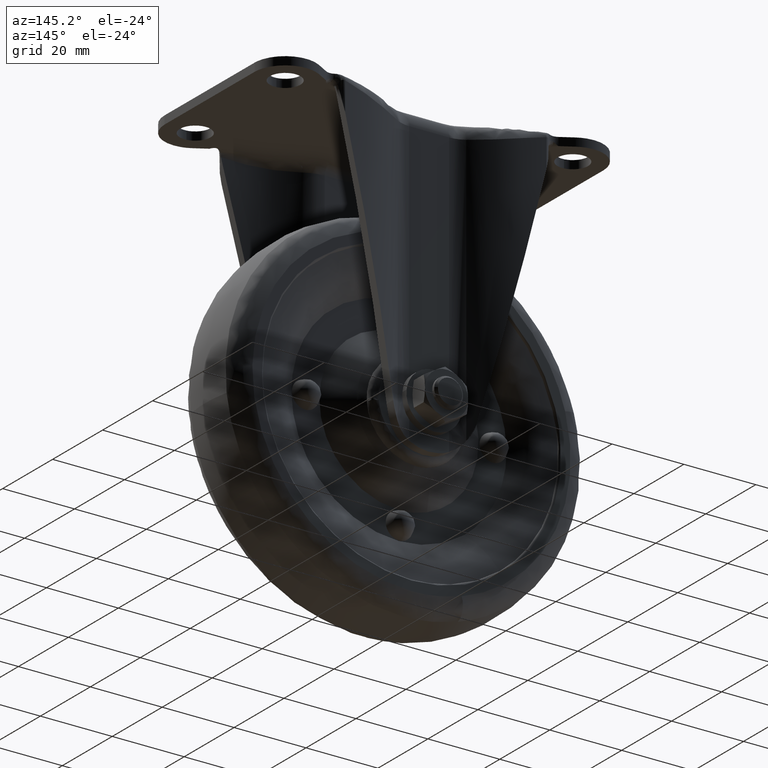
[diagram: clean part render]
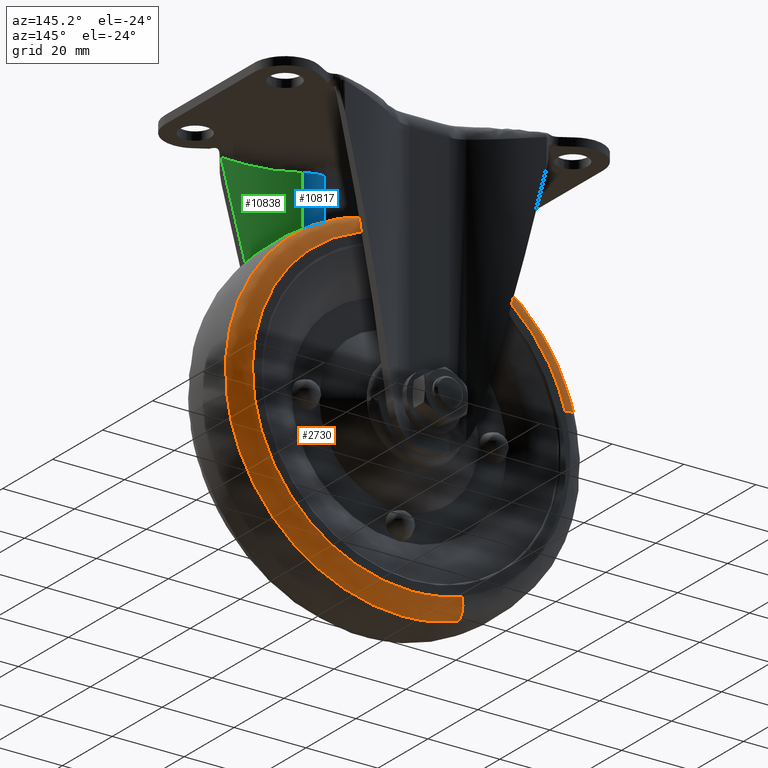
[diagram: same view with three faces highlighted in distinct colors, each labeled with its STEP entity id]
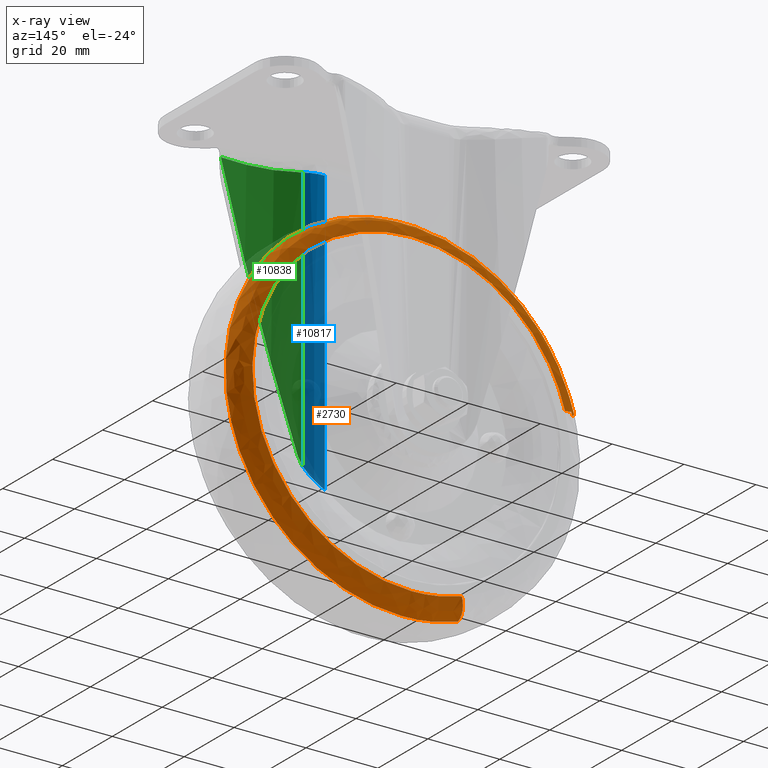
[diagram: x-ray of the same camera — body ghosted, the three highlighted faces saturated]
A machine part, auxiliary view with three faces highlighted in distinct colors.
The next image is the same camera in x-ray (body ghosted, the three faces saturated) — at least one of them is partly hidden behind the body in this view.
Their STEP definitions:

[orange] entity #2730 — the highlighted face is a freeform B-spline surface patch.
#2554=CARTESIAN_POINT('',(-13.876358544960109,10.990695812734886,-114.717122750625550));
#2555=CARTESIAN_POINT('',(-12.682433566839885,10.990695812734884,-115.114257787267730));
#2556=CARTESIAN_POINT('',(-11.467749781395989,10.990695812734888,-115.442459542424440));
#2557=CARTESIAN_POINT('',(30.974709761028421,10.990695812734884,-126.910209323820410));
#2558=CARTESIAN_POINT('',(42.442459542424402,10.990695812734888,-84.467749781395995));
#2559=CARTESIAN_POINT('',(53.910209323820411,10.990695812734884,-42.025290238971579));
#2560=CARTESIAN_POINT('',(11.467749781395989,10.990695812734888,-30.557540457575591));
#2561=CARTESIAN_POINT('',(-30.974709761028407,10.990695812734884,-19.089790676179597));
#2562=CARTESIAN_POINT('',(-42.442459542424402,10.990695812734888,-61.532250218604005));
#2563=CARTESIAN_POINT('',(-15.272281850302059,11.260882249273296,-118.913749963069450));
#2564=CARTESIAN_POINT('',(-13.958251320254217,11.260882249273294,-119.350835686429750));
#2565=CARTESIAN_POINT('',(-12.621373704258295,11.260882249273298,-119.712053630768390));
#2566=CARTESIAN_POINT('',(34.090679926510077,11.260882249273296,-132.333427335026670));
#2567=CARTESIAN_POINT('',(46.712053630768402,11.260882249273298,-85.621373704258318));
#2568=CARTESIAN_POINT('',(59.333427335026691,11.260882249273296,-38.909320073489909));
#2569=CARTESIAN_POINT('',(12.621373704258302,11.260882249273298,-26.287946369231609));
#2570=CARTESIAN_POINT('',(-34.090679926510077,11.260882249273296,-13.666572664973311));
#2571=CARTESIAN_POINT('',(-46.712053630768402,11.260882249273298,-60.378626295741718));
#2572=CARTESIAN_POINT('',(-15.524787428464316,6.902756280953331,-119.672868874942670));
#2573=CARTESIAN_POINT('',(-14.189031262263027,6.902756280953332,-120.117181192492750));
#2574=CARTESIAN_POINT('',(-12.830050265864093,6.902756280953333,-120.484371364607910));
#2575=CARTESIAN_POINT('',(34.654321098743814,6.902756280953332,-133.314421630472000));
#2576=CARTESIAN_POINT('',(47.484371364607910,6.902756280953333,-85.830050265864102));
#2577=CARTESIAN_POINT('',(60.314421630471998,6.902756280953332,-38.345678901256186));
#2578=CARTESIAN_POINT('',(12.830050265864104,6.902756280953333,-25.515628635392101));
#2579=CARTESIAN_POINT('',(-34.654321098743800,6.902756280953332,-12.685578369527997));
#2580=CARTESIAN_POINT('',(-47.484371364607910,6.902756280953333,-60.169949734135905));
#2588=(BOUNDED_SURFACE()B_SPLINE_SURFACE(2,2,((#2554,#2563,#2572),(#2555,#2564,#2573),(#2556,#2565,#2574),(#2557,#2566,#2575),(#2558,#2567,#2576),(#2559,#2568,#2577),(#2560,#2569,#2578),(#2561,#2570,#2579),(#2562,#2571,#2580)),.UNSPECIFIED.,.F.,.F.,.U.)B_SPLINE_SURFACE_WITH_KNOTS((3,2,2,2,3),(3,3),(0.0,3.259834423409346,84.755772729226237,166.251711035043090,247.747649340859990),(0.0,7.586701258167580),.UNSPECIFIED.)GEOMETRIC_REPRESENTATION_ITEM()RATIONAL_B_SPLINE_SURFACE(((0.894125716216306,0.670287635530049,0.897103704388296),(0.903984787140220,0.677678557430918,0.906995612077852),(0.914701167690566,0.685712167526518,0.917747684761806),(0.646791398433252,0.484871723600127,0.648945611313327),(0.914701167690566,0.685712167526518,0.917747684761806),(0.646791398433252,0.484871723600127,0.648945611313327),(0.914701167690566,0.685712167526518,0.917747684761806),(0.646791398433252,0.484871723600127,0.648945611313327),(0.914701167690566,0.685712167526518,0.917747684761806)))REPRESENTATION_ITEM('')SURFACE());
#2589=CARTESIAN_POINT('',(-13.972591000158550,11.0,-115.006422980699100));
#2590=VERTEX_POINT('',#2589);
#2591=CARTESIAN_POINT('',(0.0,11.0,-117.269322000000000));
#2592=VERTEX_POINT('',#2591);
#2593=CARTESIAN_POINT('',(-13.972591000158550,11.0,-115.006422980699160));
#2594=CARTESIAN_POINT('',(-7.169536817871508,11.000000000000002,-117.269321999999930));
#2595=CARTESIAN_POINT('',(0.0,11.0,-117.269322000000000));
#2603=(BOUNDED_CURVE()B_SPLINE_CURVE(2,(#2593,#2594,#2595),.UNSPECIFIED.,.F.,.U.)B_SPLINE_CURVE_WITH_KNOTS((3,3),(0.946340696665817,1.0),.UNSPECIFIED.)CURVE()GEOMETRIC_REPRESENTATION_ITEM()RATIONAL_B_SPLINE_CURVE((0.901255104926355,0.937134215708655,1.0))REPRESENTATION_ITEM(''));
#2604=EDGE_CURVE('',#2590,#2592,#2603,.T.);
#2605=ORIENTED_EDGE('',*,*,#2604,.T.);
#2606=CARTESIAN_POINT('',(0.0,11.0,-28.730677999999990));
#2607=VERTEX_POINT('',#2606);
#2608=CARTESIAN_POINT('',(0.0,11.0,-117.269322000000000));
#2609=CARTESIAN_POINT('',(44.269322000000003,11.0,-117.269321999999990));
#2610=CARTESIAN_POINT('',(44.269322000000003,11.0,-73.0));
#2611=CARTESIAN_POINT('',(44.269322000000003,11.0,-28.730677999999990));
#2612=CARTESIAN_POINT('',(0.0,11.0,-28.730677999999990));
#2620=(BOUNDED_CURVE()B_SPLINE_CURVE(2,(#2608,#2609,#2610,#2611,#2612),.UNSPECIFIED.,.F.,.U.)B_SPLINE_CURVE_WITH_KNOTS((3,2,3),(0.0,0.250000000000000,0.500000000000000),.UNSPECIFIED.)CURVE()GEOMETRIC_REPRESENTATION_ITEM()RATIONAL_B_SPLINE_CURVE((1.0,0.707106781186548,1.0,0.707106781186548,1.0))REPRESENTATION_ITEM(''));
#2621=EDGE_CURVE('',#2592,#2607,#2620,.T.);
#2622=ORIENTED_EDGE('',*,*,#2621,.T.);
#2623=CARTESIAN_POINT('',(-42.736790628027897,11.0,-61.452723365242562));
#2624=VERTEX_POINT('',#2623);
#2625=CARTESIAN_POINT('',(0.0,11.0,-28.730677999999990));
#2626=CARTESIAN_POINT('',(-33.895450307254251,11.0,-28.730677999999994));
#2627=CARTESIAN_POINT('',(-42.736790628027904,10.999999999999998,-61.452723365242569));
#2635=(BOUNDED_CURVE()B_SPLINE_CURVE(2,(#2625,#2626,#2627),.UNSPECIFIED.,.F.,.U.)B_SPLINE_CURVE_WITH_KNOTS((3,3),(0.500000000000000,0.705522207668585),.UNSPECIFIED.)CURVE()GEOMETRIC_REPRESENTATION_ITEM()RATIONAL_B_SPLINE_CURVE((1.0,0.759215756233206,0.914323587272509))REPRESENTATION_ITEM(''));
#2636=EDGE_CURVE('',#2607,#2624,#2635,.T.);
#2637=ORIENTED_EDGE('',*,*,#2636,.T.);
#2638=CARTESIAN_POINT('',(-47.422630842771611,7.200007851536473,-60.186670888908743));
#2639=VERTEX_POINT('',#2638);
#2640=CARTESIAN_POINT('',(-42.736790628027904,10.999999999999998,-61.452723365242569));
#2641=CARTESIAN_POINT('',(-46.515686129134053,11.000000066225230,-60.431703436674034));
#2642=CARTESIAN_POINT('',(-47.422630842771611,7.200007851536473,-60.186670888908743));
#2650=(BOUNDED_CURVE()B_SPLINE_CURVE(2,(#2640,#2641,#2642),.UNSPECIFIED.,.F.,.U.)B_SPLINE_CURVE_WITH_KNOTS((3,3),(-1.686821144882297,-0.303122849640564),.UNSPECIFIED.)CURVE()GEOMETRIC_REPRESENTATION_ITEM()RATIONAL_B_SPLINE_CURVE((0.894853526910430,0.705698318442292,0.897623019123299))REPRESENTATION_ITEM(''));
#2651=EDGE_CURVE('',#2624,#2639,#2650,.T.);
#2652=ORIENTED_EDGE('',*,*,#2651,.T.);
#2653=CARTESIAN_POINT('',(0.0,7.199999815677270,-23.876813315602799));
#2654=VERTEX_POINT('',#2653);
#2655=CARTESIAN_POINT('',(0.0,7.199999815677270,-23.876813315602799));
#2656=CARTESIAN_POINT('',(-37.611912203591608,7.200002073881898,-23.876813545746927));
#2657=CARTESIAN_POINT('',(-47.422630842771618,7.200007851536473,-60.186670888908743));
#2665=(BOUNDED_CURVE()B_SPLINE_CURVE(2,(#2655,#2656,#2657),.UNSPECIFIED.,.F.,.U.)B_SPLINE_CURVE_WITH_KNOTS((3,3),(0.500000000000000,0.705522334825581),.UNSPECIFIED.)CURVE()GEOMETRIC_REPRESENTATION_ITEM()RATIONAL_B_SPLINE_CURVE((1.0,0.759215607259517,0.914323779203705))REPRESENTATION_ITEM(''));
#2666=EDGE_CURVE('',#2654,#2639,#2665,.T.);
#2667=ORIENTED_EDGE('',*,*,#2666,.F.);
#2668=CARTESIAN_POINT('',(48.794628694626439,7.200038013335037,-78.671926726670165));
#2669=VERTEX_POINT('',#2668);
#2670=CARTESIAN_POINT('',(48.794628694626439,7.200038013335037,-78.671926726670165));
#2671=CARTESIAN_POINT('',(49.123177545972659,7.200037028176925,-75.845478498813549));
#2672=CARTESIAN_POINT('',(49.123177817652973,7.200035921869884,-72.999998969322533));
#2673=CARTESIAN_POINT('',(49.123182507829867,7.200016823041001,-23.876812830115259));
#2674=CARTESIAN_POINT('',(0.0,7.199999815677270,-23.876813315602799));
#2682=(BOUNDED_CURVE()B_SPLINE_CURVE(2,(#2670,#2671,#2672,#2673,#2674),.UNSPECIFIED.,.F.,.U.)B_SPLINE_CURVE_WITH_KNOTS((3,2,3),(0.230000149328988,0.250000000000000,0.500000000000000),.UNSPECIFIED.)CURVE()GEOMETRIC_REPRESENTATION_ITEM()RATIONAL_B_SPLINE_CURVE((0.956886412106520,0.976568717444716,1.0,0.707106781186547,1.0))REPRESENTATION_ITEM(''));
#2683=EDGE_CURVE('',#2669,#2654,#2682,.T.);
#2684=ORIENTED_EDGE('',*,*,#2683,.F.);
#2685=CARTESIAN_POINT('',(0.0,7.200009338523695,-122.123184330101590));
#2686=VERTEX_POINT('',#2685);
#2687=CARTESIAN_POINT('',(0.0,7.200009338523695,-122.123184330101590));
#2688=CARTESIAN_POINT('',(43.743824247192030,7.200023675929366,-122.123184962059500));
#2689=CARTESIAN_POINT('',(48.794628694626439,7.200038013335037,-78.671926726670165));
#2697=(BOUNDED_CURVE()B_SPLINE_CURVE(2,(#2687,#2688,#2689),.UNSPECIFIED.,.F.,.U.)B_SPLINE_CURVE_WITH_KNOTS((3,3),(0.0,0.230000149328989),.UNSPECIFIED.)CURVE()GEOMETRIC_REPRESENTATION_ITEM()RATIONAL_B_SPLINE_CURVE((1.0,0.730538063741831,0.956886412106520))REPRESENTATION_ITEM(''));
#2698=EDGE_CURVE('',#2686,#2669,#2697,.T.);
#2699=ORIENTED_EDGE('',*,*,#2698,.F.);
#2700=CARTESIAN_POINT('',(-15.504600760698301,7.200009058311881,-119.612172195363400));
#2701=VERTEX_POINT('',#2700);
#2702=CARTESIAN_POINT('',(-15.504600760698299,7.200009058311882,-119.612172195363430));
#2703=CARTESIAN_POINT('',(-7.955633002077046,7.200009338523694,-122.123184330101620));
#2704=CARTESIAN_POINT('',(0.0,7.200009338523695,-122.123184330101590));
#2712=(BOUNDED_CURVE()B_SPLINE_CURVE(2,(#2702,#2703,#2704),.UNSPECIFIED.,.F.,.U.)B_SPLINE_CURVE_WITH_KNOTS((3,3),(0.946340699016298,1.0),.UNSPECIFIED.)CURVE()GEOMETRIC_REPRESENTATION_ITEM()RATIONAL_B_SPLINE_CURVE((0.901255108069637,0.937134218462415,1.0))REPRESENTATION_ITEM(''));
#2713=EDGE_CURVE('',#2701,#2686,#2712,.T.);
#2714=ORIENTED_EDGE('',*,*,#2713,.F.);
#2715=CARTESIAN_POINT('',(-13.972591000158554,11.0,-115.006422980699130));
#2716=CARTESIAN_POINT('',(-15.208080907182064,10.999999990248162,-118.720731345990870));
#2717=CARTESIAN_POINT('',(-15.504600760698295,7.200009058311881,-119.612172195363480));
#2725=(BOUNDED_CURVE()B_SPLINE_CURVE(2,(#2715,#2716,#2717),.UNSPECIFIED.,.F.,.U.)B_SPLINE_CURVE_WITH_KNOTS((3,3),(-1.686821144742521,-0.303123155543126),.UNSPECIFIED.)CURVE()GEOMETRIC_REPRESENTATION_ITEM()RATIONAL_B_SPLINE_CURVE((0.874724513379568,0.689824240784691,0.877431625169222))REPRESENTATION_ITEM(''));
#2726=EDGE_CURVE('',#2590,#2701,#2725,.T.);
#2727=ORIENTED_EDGE('',*,*,#2726,.F.);
#2728=EDGE_LOOP('',(#2605,#2622,#2637,#2652,#2667,#2684,#2699,#2714,#2727));
#2729=FACE_OUTER_BOUND('',#2728,.T.);
#2730=ADVANCED_FACE('',(#2729),#2588,.T.);

[blue] entity #10817 — the highlighted face is a freeform B-spline surface patch.
#7611=CARTESIAN_POINT('',(10.752015536604739,-17.263225094700800,-4.999999999999890));
#7612=VERTEX_POINT('',#7611);
#7685=CARTESIAN_POINT('',(5.520442000000000,-15.750000000000000,-4.999999999999890));
#7686=VERTEX_POINT('',#7685);
#7716=CARTESIAN_POINT('',(5.520442000000000,-15.750000000000000,-4.999999999999890));
#7717=CARTESIAN_POINT('',(8.355077855599950,-15.749999999999995,-4.999999999999890));
#7718=CARTESIAN_POINT('',(10.752015536604750,-17.263225094700779,-4.999999999999890));
#7726=(BOUNDED_CURVE()B_SPLINE_CURVE(2,(#7716,#7717,#7718),.UNSPECIFIED.,.F.,.U.)CURVE()GEOMETRIC_REPRESENTATION_ITEM()QUASI_UNIFORM_CURVE()RATIONAL_B_SPLINE_CURVE((1.0,0.960622005799092,1.0))REPRESENTATION_ITEM(''));
#7727=EDGE_CURVE('',#7686,#7612,#7726,.T.);
#10017=CARTESIAN_POINT('',(5.520442000000000,-15.750000000000000,-83.654797223085112));
#10018=VERTEX_POINT('',#10017);
#10032=CARTESIAN_POINT('',(10.752015536604739,-17.263225094700800,-78.328615746871208));
#10033=VERTEX_POINT('',#10032);
#10034=CARTESIAN_POINT('',(10.752015536604739,-17.263225094700800,-78.328615746871208));
#10035=CARTESIAN_POINT('',(10.472852642506220,-17.086985094717949,-78.891907185564207));
#10036=CARTESIAN_POINT('',(10.154164372996410,-16.905502787067949,-79.424803492118144));
#10037=CARTESIAN_POINT('',(9.437199884366240,-16.557907764616051,-80.438038186537554));
#10038=CARTESIAN_POINT('',(9.038968214840187,-16.391534251921609,-80.918321893601586));
#10039=CARTESIAN_POINT('',(8.485434482273099,-16.208564634970880,-81.486610552603139));
#10040=CARTESIAN_POINT('',(8.371649387907898,-16.173160024764080,-81.598888093445879));
#10041=CARTESIAN_POINT('',(8.140298569372371,-16.105908564294850,-81.818215756570339));
#10042=CARTESIAN_POINT('',(8.022589892608137,-16.074004209368109,-81.925433135153426));
#10043=CARTESIAN_POINT('',(7.663345431775317,-15.983970202622610,-82.239827316132462));
#10044=CARTESIAN_POINT('',(7.415703217831039,-15.931507603216650,-82.439760219212303));
#10045=CARTESIAN_POINT('',(6.903746679171762,-15.844646877347790,-82.820387422567109));
#10046=CARTESIAN_POINT('',(6.639434471231654,-15.810237816607991,-83.001082368338857));
#10047=CARTESIAN_POINT('',(6.093350764881194,-15.762922444016880,-83.342863012425326));
#10048=CARTESIAN_POINT('',(5.811583698321506,-15.750000000000000,-83.503951468326463));
#10049=CARTESIAN_POINT('',(5.520441999999998,-15.750000000000000,-83.654797223085112));
#10050=B_SPLINE_CURVE_WITH_KNOTS('',3,(#10034,#10035,#10036,#10037,#10038,#10039,#10040,#10041,#10042,#10043,#10044,#10045,#10046,#10047,#10048,#10049),.UNSPECIFIED.,.F.,.U.,(4,2,2,2,2,2,2,4),(0.0,0.249999999999995,0.499999999999990,0.562499999999989,0.624999999999989,0.749999999999993,0.874999999999996,1.0),.UNSPECIFIED.);
#10051=EDGE_CURVE('',#10033,#10018,#10050,.T.);
#10778=CARTESIAN_POINT('',(5.520442000000000,-15.750000000000000,-83.654797223085112));
#10779=CARTESIAN_POINT('',(5.520442000000000,-15.750000000000000,-4.999999999999890));
#10780=QUASI_UNIFORM_CURVE('',1,(#10778,#10779),.UNSPECIFIED.,.F.,.U.);
#10781=EDGE_CURVE('',#10018,#7686,#10780,.T.);
#10793=CARTESIAN_POINT('',(5.249794294083275,-15.753737966995679,-85.621167153662228));
#10794=CARTESIAN_POINT('',(5.249794294083275,-15.753737966995679,-2.984470821158325));
#10795=CARTESIAN_POINT('',(8.379880735513650,-15.667261032034157,-85.621167153662242));
#10796=CARTESIAN_POINT('',(8.379880735513650,-15.667261032034157,-2.984470821158326));
#10797=CARTESIAN_POINT('',(10.980200297875951,-17.411754530073775,-85.621167153662256));
#10798=CARTESIAN_POINT('',(10.980200297875951,-17.411754530073775,-2.984470821158325));
#10806=(BOUNDED_SURFACE()B_SPLINE_SURFACE(1,2,((#10793,#10795,#10797),(#10794,#10796,#10798)),.UNSPECIFIED.,.F.,.F.,.U.)B_SPLINE_SURFACE_WITH_KNOTS((2,2),(3,3),(0.0,82.636696332503931),(0.0,6.110380548654788),.UNSPECIFIED.)GEOMETRIC_REPRESENTATION_ITEM()RATIONAL_B_SPLINE_SURFACE(((0.998078107988550,0.947813846557944,0.991972044837159),(0.998078107988550,0.947813846557944,0.991972044837159)))REPRESENTATION_ITEM('')SURFACE());
#10807=ORIENTED_EDGE('',*,*,#10781,.T.);
#10808=ORIENTED_EDGE('',*,*,#7727,.T.);
#10809=CARTESIAN_POINT('',(10.752015536604739,-17.263225094700800,-78.328615746871208));
#10810=CARTESIAN_POINT('',(10.752015536604739,-17.263225094700800,-4.999999999999890));
#10811=QUASI_UNIFORM_CURVE('',1,(#10809,#10810),.UNSPECIFIED.,.F.,.U.);
#10812=EDGE_CURVE('',#10033,#7612,#10811,.T.);
#10813=ORIENTED_EDGE('',*,*,#10812,.F.);
#10814=ORIENTED_EDGE('',*,*,#10051,.T.);
#10815=EDGE_LOOP('',(#10807,#10808,#10813,#10814));
#10816=FACE_OUTER_BOUND('',#10815,.T.);
#10817=ADVANCED_FACE('',(#10816),#10806,.T.);

[green] entity #10838 — the highlighted face is a freeform B-spline surface patch.
#7601=CARTESIAN_POINT('',(29.421013821326049,-22.954649893946200,-3.834143536252110));
#7602=VERTEX_POINT('',#7601);
#7611=CARTESIAN_POINT('',(10.752015536604739,-17.263225094700800,-4.999999999999890));
#7612=VERTEX_POINT('',#7611);
#7613=CARTESIAN_POINT('',(10.752015536604739,-17.263225094700800,-4.999999999999890));
#7614=CARTESIAN_POINT('',(11.007375366808651,-17.415258690373161,-4.999285578895084));
#7615=CARTESIAN_POINT('',(11.524125786046220,-17.722916414922668,-4.997839864410058));
#7616=CARTESIAN_POINT('',(12.321385960701010,-18.167153440086409,-4.986477492832036));
#7617=CARTESIAN_POINT('',(13.146545333427570,-18.603901034902560,-4.968441101658184));
#7618=CARTESIAN_POINT('',(14.000825892486329,-19.029983376799869,-4.943024537592962));
#7619=CARTESIAN_POINT('',(14.884137843331869,-19.444256497713209,-4.910423046130638));
#7620=CARTESIAN_POINT('',(15.796682109340640,-19.844949454266960,-4.870583521572487));
#7621=CARTESIAN_POINT('',(16.738499745827500,-20.230402472802400,-4.823515949458993));
#7622=CARTESIAN_POINT('',(17.709592741981279,-20.598865089458009,-4.769234850021149));
#7623=CARTESIAN_POINT('',(18.709876419387911,-20.948551437247929,-4.707668863315296));
#7624=CARTESIAN_POINT('',(19.719185548067770,-21.271234126049290,-4.640430428943427));
#7625=CARTESIAN_POINT('',(20.769384660733980,-21.576441781791829,-4.564526665012519));
#7626=CARTESIAN_POINT('',(21.893578003161672,-21.869750936424079,-4.477969394351960));
#7627=CARTESIAN_POINT('',(23.146466293691169,-22.155775911224438,-4.377192411466242));
#7628=CARTESIAN_POINT('',(24.529375594675820,-22.422931704355602,-4.262108662354405));
#7629=CARTESIAN_POINT('',(26.043116875415581,-22.656564067471361,-4.132680623031907));
#7630=CARTESIAN_POINT('',(27.687340605672969,-22.848499631506652,-3.989130875231908));
#7631=CARTESIAN_POINT('',(28.829421341326750,-22.918427556055651,-3.887030864387369));
#7632=CARTESIAN_POINT('',(29.421013821326049,-22.954649893946200,-3.834143536252110));
#7633=B_SPLINE_CURVE_WITH_KNOTS('',3,(#7613,#7614,#7615,#7616,#7617,#7618,#7619,#7620,#7621,#7622,#7623,#7624,#7625,#7626,#7627,#7628,#7629,#7630,#7631,#7632),.UNSPECIFIED.,.F.,.U.,(4,1,1,1,1,1,1,1,1,1,1,1,1,1,1,1,1,4),(0.0,0.045121401743665,0.091308422507198,0.138563762393528,0.186889942151379,0.236289318315666,0.286764096821407,0.338316345267470,0.390948003983695,0.444660896035641,0.499456736284293,0.552138034384191,0.611093021439031,0.676322731735405,0.747827875535799,0.825608938830910,0.909666245873875,1.0),.UNSPECIFIED.);
#7634=EDGE_CURVE('',#7612,#7602,#7633,.T.);
#9889=CARTESIAN_POINT('',(11.650773945750901,-17.790308208999299,-75.873926219923803));
#9890=VERTEX_POINT('',#9889);
#9896=CARTESIAN_POINT('',(11.650773945750901,-17.790308208999289,-75.873926219923860));
#9897=CARTESIAN_POINT('',(19.919048058782153,-22.495014495654871,-42.354701131099844));
#9898=CARTESIAN_POINT('',(29.421013821326071,-22.954649893946179,-3.834143536252112));
#9906=(BOUNDED_CURVE()B_SPLINE_CURVE(2,(#9896,#9897,#9898),.UNSPECIFIED.,.F.,.U.)CURVE()GEOMETRIC_REPRESENTATION_ITEM()QUASI_UNIFORM_CURVE()RATIONAL_B_SPLINE_CURVE((1.0,0.972632526787111,1.0))REPRESENTATION_ITEM(''));
#9907=EDGE_CURVE('',#9890,#7602,#9906,.T.);
#10032=CARTESIAN_POINT('',(10.752015536604739,-17.263225094700800,-78.328615746871208));
#10033=VERTEX_POINT('',#10032);
#10053=CARTESIAN_POINT('',(10.752015536604739,-17.263225094700800,-78.328615746871208));
#10054=CARTESIAN_POINT('',(10.944095156306680,-17.379275663866402,-77.941039882767953));
#10055=CARTESIAN_POINT('',(11.115462495061641,-17.480623553295771,-77.542722497059273));
#10056=CARTESIAN_POINT('',(11.415648273530920,-17.655896808700799,-76.724622046724662));
#10057=CARTESIAN_POINT('',(11.544478549361809,-17.729825378749851,-76.304843152377330));
#10058=CARTESIAN_POINT('',(11.650773945750920,-17.790308208999299,-75.873926219923803));
#10059=B_SPLINE_CURVE_WITH_KNOTS('',3,(#10053,#10054,#10055,#10056,#10057,#10058),.UNSPECIFIED.,.F.,.U.,(4,2,4),(0.000000272737058,0.500000000000000,1.0),.UNSPECIFIED.);
#10060=EDGE_CURVE('',#10033,#9890,#10059,.T.);
#10809=CARTESIAN_POINT('',(10.752015536604739,-17.263225094700800,-78.328615746871208));
#10810=CARTESIAN_POINT('',(10.752015536604739,-17.263225094700800,-4.999999999999890));
#10811=QUASI_UNIFORM_CURVE('',1,(#10809,#10810),.UNSPECIFIED.,.F.,.U.);
#10812=EDGE_CURVE('',#10033,#7612,#10811,.T.);
#10818=CARTESIAN_POINT('',(30.391089416522814,-22.989730256891839,-80.190977552136701));
#10819=CARTESIAN_POINT('',(30.391089416522814,-22.989730256891839,-1.925222685855005));
#10820=CARTESIAN_POINT('',(19.286549762614861,-22.723631020164650,-80.190977552136687));
#10821=CARTESIAN_POINT('',(19.286549762614861,-22.723631020164650,-1.925222685855005));
#10822=CARTESIAN_POINT('',(9.922924432241739,-16.748337688336004,-80.190977552136687));
#10823=CARTESIAN_POINT('',(9.922924432241739,-16.748337688336004,-1.925222685855005));
#10831=(BOUNDED_SURFACE()B_SPLINE_SURFACE(1,2,((#10818,#10820,#10822),(#10819,#10821,#10823)),.UNSPECIFIED.,.F.,.F.,.U.)B_SPLINE_SURFACE_WITH_KNOTS((2,2),(3,3),(0.0,78.265754866281696),(0.0,21.799341985904022),.UNSPECIFIED.)GEOMETRIC_REPRESENTATION_ITEM()RATIONAL_B_SPLINE_SURFACE(((0.998073571635882,0.958666851583013,0.992457517305085),(0.998073571635882,0.958666851583013,0.992457517305085)))REPRESENTATION_ITEM('')SURFACE());
#10832=ORIENTED_EDGE('',*,*,#10812,.T.);
#10833=ORIENTED_EDGE('',*,*,#7634,.T.);
#10834=ORIENTED_EDGE('',*,*,#9907,.F.);
#10835=ORIENTED_EDGE('',*,*,#10060,.F.);
#10836=EDGE_LOOP('',(#10832,#10833,#10834,#10835));
#10837=FACE_OUTER_BOUND('',#10836,.T.);
#10838=ADVANCED_FACE('',(#10837),#10831,.F.);